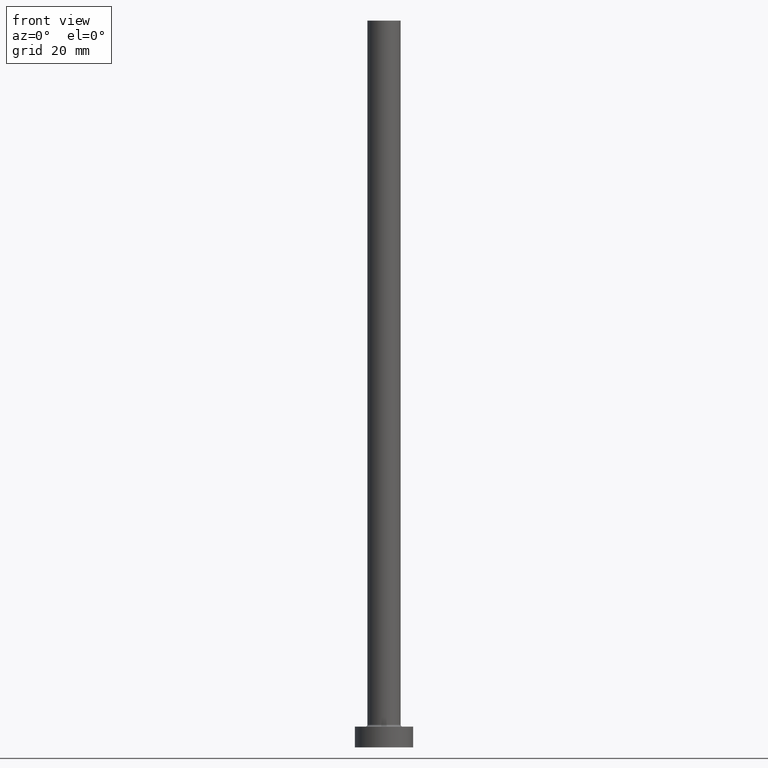
[diagram: clean part render]
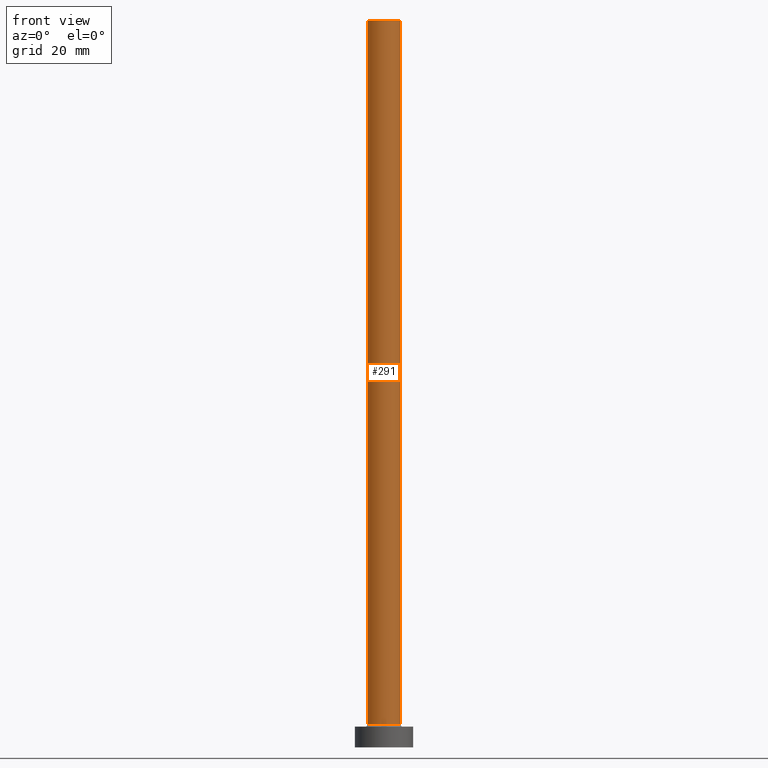
[diagram: same view with one face highlighted and labeled with its STEP entity id]
A machine part, front view. The second image highlights one B-rep face of the part: STEP entity #291.
In plain terms, the highlighted cylindrical surface (edge-blend (fillet) strip) has radius 4 mm, axis along (-0, -0, -1).
Its self-contained STEP definition (entity closure, byte-faithful):
#7 = VERTEX_POINT ( 'NONE', #59 ) ;
#10 = EDGE_CURVE ( 'NONE', #245, #385, #297, .T. ) ;
#28 = CARTESIAN_POINT ( 'NONE',  ( 4.000000000000000000, 4.898587196589412829E-16, 175.0000000000000284 ) ) ;
#32 = DIRECTION ( 'NONE',  ( 1.000000000000000000, 0.000000000000000000, 0.000000000000000000 ) ) ;
#49 = VECTOR ( 'NONE', #427, 1000.000000000000000 ) ;
#53 = EDGE_CURVE ( 'NONE', #440, #245, #407, .T. ) ;
#59 = CARTESIAN_POINT ( 'NONE',  ( -4.000000000000000000, 0.000000000000000000, 5.500000000000005329 ) ) ;
#64 = CARTESIAN_POINT ( 'NONE',  ( 0.000000000000000000, 0.000000000000000000, 175.0000000000000284 ) ) ;
#72 = CARTESIAN_POINT ( 'NONE',  ( 0.000000000000000000, 0.000000000000000000, 5.500000000000005329 ) ) ;
#95 = FACE_OUTER_BOUND ( 'NONE', #195, .T. ) ;
#100 = CYLINDRICAL_SURFACE ( 'NONE', #271, 4.000000000000000000 ) ;
#115 = DIRECTION ( 'NONE',  ( 0.000000000000000000, 0.000000000000000000, 1.000000000000000000 ) ) ;
#139 = DIRECTION ( 'NONE',  ( -0.000000000000000000, -0.000000000000000000, -1.000000000000000000 ) ) ;
#153 = DIRECTION ( 'NONE',  ( 1.000000000000000000, 0.000000000000000000, 0.000000000000000000 ) ) ;
#166 = ORIENTED_EDGE ( 'NONE', *, *, #53, .F. ) ;
#174 = DIRECTION ( 'NONE',  ( -0.000000000000000000, -0.000000000000000000, -1.000000000000000000 ) ) ;
#183 = CARTESIAN_POINT ( 'NONE',  ( 4.000000000000000000, 4.898587196589412829E-16, 175.0000000000000284 ) ) ;
#195 = EDGE_LOOP ( 'NONE', ( #377, #166, #210, #243 ) ) ;
#201 = DIRECTION ( 'NONE',  ( -1.000000000000000000, 0.000000000000000000, 0.000000000000000000 ) ) ;
#210 = ORIENTED_EDGE ( 'NONE', *, *, #330, .T. ) ;
#238 = VECTOR ( 'NONE', #139, 1000.000000000000000 ) ;
#243 = ORIENTED_EDGE ( 'NONE', *, *, #437, .T. ) ;
#245 = VERTEX_POINT ( 'NONE', #28 ) ;
#267 = AXIS2_PLACEMENT_3D ( 'NONE', #72, #115, #153 ) ;
#271 = AXIS2_PLACEMENT_3D ( 'NONE', #64, #174, #201 ) ;
#291 = ADVANCED_FACE ( 'NONE', ( #95 ), #100, .T. ) ;
#293 = CARTESIAN_POINT ( 'NONE',  ( -4.000000000000000000, 0.000000000000000000, 175.0000000000000284 ) ) ;
#297 = LINE ( 'NONE', #183, #49 ) ;
#320 = DIRECTION ( 'NONE',  ( 0.000000000000000000, 0.000000000000000000, 1.000000000000000000 ) ) ;
#323 = CARTESIAN_POINT ( 'NONE',  ( 4.000000000000000000, 4.898587196589412829E-16, 5.500000000000005329 ) ) ;
#330 = EDGE_CURVE ( 'NONE', #440, #7, #404, .T. ) ;
#340 = AXIS2_PLACEMENT_3D ( 'NONE', #422, #320, #32 ) ;
#377 = ORIENTED_EDGE ( 'NONE', *, *, #10, .F. ) ;
#385 = VERTEX_POINT ( 'NONE', #323 ) ;
#404 = LINE ( 'NONE', #414, #238 ) ;
#407 = CIRCLE ( 'NONE', #340, 4.000000000000000000 ) ;
#408 = CIRCLE ( 'NONE', #267, 4.000000000000000000 ) ;
#414 = CARTESIAN_POINT ( 'NONE',  ( -4.000000000000000000, 0.000000000000000000, 175.0000000000000284 ) ) ;
#422 = CARTESIAN_POINT ( 'NONE',  ( 0.000000000000000000, 0.000000000000000000, 175.0000000000000284 ) ) ;
#427 = DIRECTION ( 'NONE',  ( -0.000000000000000000, -0.000000000000000000, -1.000000000000000000 ) ) ;
#437 = EDGE_CURVE ( 'NONE', #7, #385, #408, .T. ) ;
#440 = VERTEX_POINT ( 'NONE', #293 ) ;